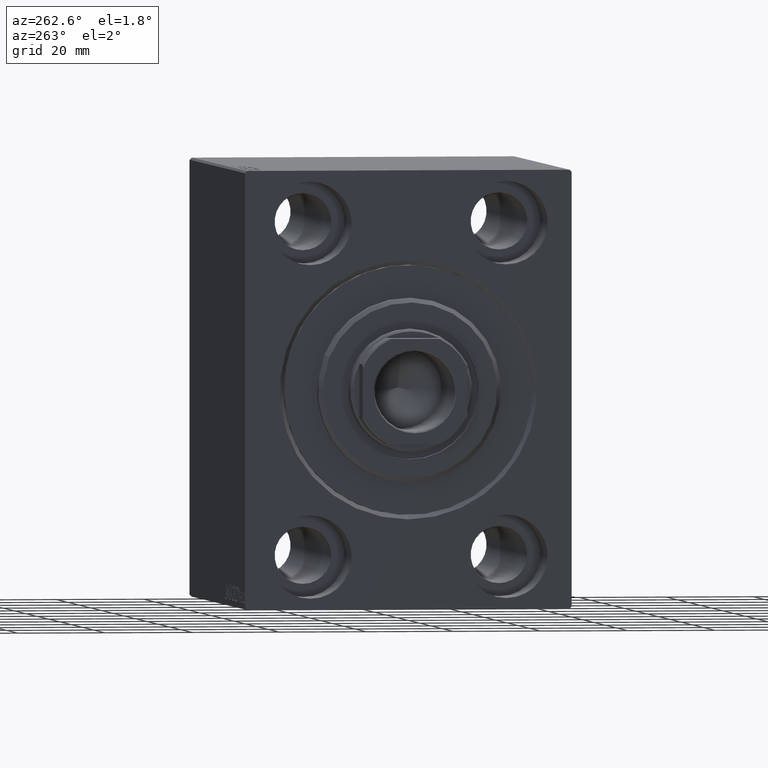
[diagram: clean part render]
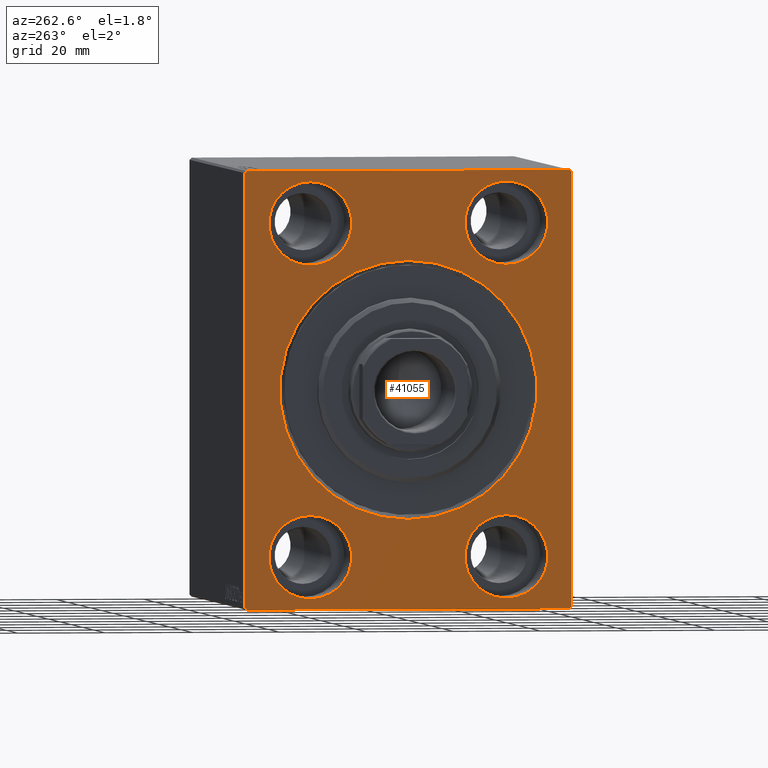
[diagram: same view with one face highlighted and labeled with its STEP entity id]
A machine part, auxiliary view. The second image highlights one B-rep face of the part: STEP entity #41055.
In plain terms, the highlighted planar face has unit normal (1, 0, 0).
Its self-contained STEP definition (entity closure, byte-faithful):
#275 = CIRCLE ( 'NONE', #25675, 29.50000000000001421 ) ;
#370 = EDGE_CURVE ( 'NONE', #13484, #19441, #38043, .T. ) ;
#395 = CIRCLE ( 'NONE', #18007, 9.500000000000001776 ) ;
#685 = ORIENTED_EDGE ( 'NONE', *, *, #15883, .F. ) ;
#1095 = DIRECTION ( 'NONE',  ( 0.000000000000000000, 0.000000000000000000, -1.000000000000000000 ) ) ;
#1385 = LINE ( 'NONE', #7582, #17860 ) ;
#1531 = CARTESIAN_POINT ( 'NONE',  ( 0.000000000000000000, -37.50000000000000711, 49.99999999999999289 ) ) ;
#1551 = DIRECTION ( 'NONE',  ( -0.000000000000000000, 0.7071067811865474617, 0.7071067811865474617 ) ) ;
#2377 = FACE_BOUND ( 'NONE', #23264, .T. ) ;
#2424 = DIRECTION ( 'NONE',  ( 0.000000000000000000, 0.000000000000000000, -1.000000000000000000 ) ) ;
#3053 = EDGE_CURVE ( 'NONE', #4246, #4127, #7900, .T. ) ;
#3313 = AXIS2_PLACEMENT_3D ( 'NONE', #31777, #25814, #38842 ) ;
#3971 = CARTESIAN_POINT ( 'NONE',  ( 0.000000000000000000, -22.50000000000000711, -37.99999999999999289 ) ) ;
#4080 = DIRECTION ( 'NONE',  ( 0.000000000000000000, 0.000000000000000000, 1.000000000000000000 ) ) ;
#4127 = VERTEX_POINT ( 'NONE', #31606 ) ;
#4246 = VERTEX_POINT ( 'NONE', #19453 ) ;
#5705 = ORIENTED_EDGE ( 'NONE', *, *, #11482, .T. ) ;
#6077 = EDGE_CURVE ( 'NONE', #13484, #32145, #17277, .T. ) ;
#6550 = CARTESIAN_POINT ( 'NONE',  ( 0.000000000000000000, 37.49999999999999289, 50.00000000000000711 ) ) ;
#7317 = DIRECTION ( 'NONE',  ( -0.000000000000000000, -0.7071067811865474617, 0.7071067811865474617 ) ) ;
#7383 = EDGE_CURVE ( 'NONE', #41171, #22258, #395, .T. ) ;
#7540 = CARTESIAN_POINT ( 'NONE',  ( 0.000000000000000000, 36.99999999999999289, 50.00000000000000711 ) ) ;
#7582 = CARTESIAN_POINT ( 'NONE',  ( 0.000000000000000000, 36.99999999999999289, 50.00000000000000711 ) ) ;
#7690 = CARTESIAN_POINT ( 'NONE',  ( 0.000000000000000000, -22.50000000000000711, -28.49999999999998934 ) ) ;
#7900 = CIRCLE ( 'NONE', #32593, 9.500000000000001776 ) ;
#8214 = CARTESIAN_POINT ( 'NONE',  ( 0.000000000000000000, 37.50000000000000711, -50.00000000000000000 ) ) ;
#8336 = VERTEX_POINT ( 'NONE', #7690 ) ;
#8416 = CARTESIAN_POINT ( 'NONE',  ( 0.000000000000000000, -36.99999999999999289, 49.99999999999999289 ) ) ;
#8779 = CARTESIAN_POINT ( 'NONE',  ( 0.000000000000000000, 0.000000000000000000, 0.000000000000000000 ) ) ;
#8965 = VECTOR ( 'NONE', #1095, 1000.000000000000000 ) ;
#9671 = CIRCLE ( 'NONE', #3313, 9.500000000000001776 ) ;
#10005 = VERTEX_POINT ( 'NONE', #7540 ) ;
#10204 = CARTESIAN_POINT ( 'NONE',  ( 0.000000000000000000, -36.99999999999999289, -50.00000000000000711 ) ) ;
#10441 = VECTOR ( 'NONE', #40331, 1000.000000000000000 ) ;
#10478 = CARTESIAN_POINT ( 'NONE',  ( 0.000000000000000000, -22.49999999999999645, 37.99999999999999289 ) ) ;
#10661 = DIRECTION ( 'NONE',  ( 0.000000000000000000, -0.7071067811865474617, -0.7071067811865474617 ) ) ;
#10990 = AXIS2_PLACEMENT_3D ( 'NONE', #3971, #17436, #26949 ) ;
#11104 = CARTESIAN_POINT ( 'NONE',  ( 0.000000000000000000, 22.50000000000000355, 37.99999999999999289 ) ) ;
#11207 = CARTESIAN_POINT ( 'NONE',  ( 0.000000000000000000, 22.49999999999999645, -37.99999999999999289 ) ) ;
#11342 = DIRECTION ( 'NONE',  ( -1.000000000000000000, 0.000000000000000000, 0.000000000000000000 ) ) ;
#11482 = EDGE_CURVE ( 'NONE', #10005, #19441, #1385, .T. ) ;
#11733 = ORIENTED_EDGE ( 'NONE', *, *, #25404, .F. ) ;
#11870 = EDGE_LOOP ( 'NONE', ( #32048, #16987, #33472, #5705, #30048, #25398, #37486, #26221 ) ) ;
#12097 = FACE_BOUND ( 'NONE', #18568, .T. ) ;
#12131 = DIRECTION ( 'NONE',  ( 0.000000000000000000, 1.000000000000000000, 9.251858538542970348E-17 ) ) ;
#12137 = VERTEX_POINT ( 'NONE', #40089 ) ;
#12666 = EDGE_CURVE ( 'NONE', #34120, #21626, #35134, .T. ) ;
#13484 = VERTEX_POINT ( 'NONE', #13500 ) ;
#13500 = CARTESIAN_POINT ( 'NONE',  ( 0.000000000000000000, 37.50000000000000711, -49.50000000000000000 ) ) ;
#13559 = DIRECTION ( 'NONE',  ( 0.000000000000000000, 0.000000000000000000, 1.000000000000000000 ) ) ;
#15147 = CARTESIAN_POINT ( 'NONE',  ( 0.000000000000000000, 22.49999999999999645, -37.99999999999999289 ) ) ;
#15217 = LINE ( 'NONE', #35763, #37866 ) ;
#15267 = AXIS2_PLACEMENT_3D ( 'NONE', #15147, #21992, #38998 ) ;
#15566 = CARTESIAN_POINT ( 'NONE',  ( 0.000000000000000000, 22.49999999999999645, -28.49999999999998934 ) ) ;
#15723 = VERTEX_POINT ( 'NONE', #18313 ) ;
#15883 = EDGE_CURVE ( 'NONE', #39209, #8336, #42721, .T. ) ;
#15902 = CARTESIAN_POINT ( 'NONE',  ( 0.000000000000000000, -37.50000000000000711, 49.49999999999997868 ) ) ;
#15971 = CIRCLE ( 'NONE', #25178, 29.50000000000001421 ) ;
#16428 = CARTESIAN_POINT ( 'NONE',  ( 0.000000000000000000, -22.49999999999999645, 28.49999999999998934 ) ) ;
#16987 = ORIENTED_EDGE ( 'NONE', *, *, #12666, .T. ) ;
#17277 = LINE ( 'NONE', #30759, #34976 ) ;
#17399 = CARTESIAN_POINT ( 'NONE',  ( 0.000000000000000000, -22.49999999999999645, 37.99999999999999289 ) ) ;
#17436 = DIRECTION ( 'NONE',  ( -1.000000000000000000, 0.000000000000000000, 0.000000000000000000 ) ) ;
#17611 = DIRECTION ( 'NONE',  ( 0.000000000000000000, 0.000000000000000000, 1.000000000000000000 ) ) ;
#17815 = CARTESIAN_POINT ( 'NONE',  ( 0.000000000000000000, 3.612708057484693970E-15, -29.50000000000001421 ) ) ;
#17860 = VECTOR ( 'NONE', #21056, 999.9999999999998863 ) ;
#18007 = AXIS2_PLACEMENT_3D ( 'NONE', #11207, #24242, #17611 ) ;
#18243 = ORIENTED_EDGE ( 'NONE', *, *, #3053, .F. ) ;
#18313 = CARTESIAN_POINT ( 'NONE',  ( 0.000000000000000000, 0.000000000000000000, 29.50000000000001421 ) ) ;
#18401 = CARTESIAN_POINT ( 'NONE',  ( 0.000000000000000000, 22.50000000000000355, 37.99999999999999289 ) ) ;
#18423 = ORIENTED_EDGE ( 'NONE', *, *, #22920, .F. ) ;
#18568 = EDGE_LOOP ( 'NONE', ( #18423, #11733 ) ) ;
#18944 = FACE_BOUND ( 'NONE', #25778, .T. ) ;
#18999 = CIRCLE ( 'NONE', #35927, 9.500000000000001776 ) ;
#19128 = CARTESIAN_POINT ( 'NONE',  ( 0.000000000000000000, 22.49999999999999645, -47.49999999999999289 ) ) ;
#19206 = CARTESIAN_POINT ( 'NONE',  ( 0.000000000000000000, 0.000000000000000000, 0.000000000000000000 ) ) ;
#19441 = VERTEX_POINT ( 'NONE', #26637 ) ;
#19453 = CARTESIAN_POINT ( 'NONE',  ( 0.000000000000000000, 22.50000000000000355, 28.49999999999998934 ) ) ;
#19664 = EDGE_CURVE ( 'NONE', #34120, #27586, #22064, .T. ) ;
#20102 = EDGE_CURVE ( 'NONE', #10005, #21626, #37460, .T. ) ;
#20188 = AXIS2_PLACEMENT_3D ( 'NONE', #8779, #42126, #22244 ) ;
#20704 = VECTOR ( 'NONE', #1551, 1000.000000000000114 ) ;
#21056 = DIRECTION ( 'NONE',  ( -0.000000000000000000, 0.7071067811865425767, -0.7071067811865525687 ) ) ;
#21122 = ORIENTED_EDGE ( 'NONE', *, *, #43345, .T. ) ;
#21354 = CARTESIAN_POINT ( 'NONE',  ( 0.000000000000000000, 37.00000000000000711, -50.00000000000000000 ) ) ;
#21626 = VERTEX_POINT ( 'NONE', #8416 ) ;
#21774 = CARTESIAN_POINT ( 'NONE',  ( 0.000000000000000000, -22.50000000000000711, -47.49999999999999289 ) ) ;
#21818 = EDGE_CURVE ( 'NONE', #8336, #39209, #9671, .T. ) ;
#21992 = DIRECTION ( 'NONE',  ( -1.000000000000000000, 0.000000000000000000, 0.000000000000000000 ) ) ;
#22064 = LINE ( 'NONE', #1531, #8965 ) ;
#22075 = VERTEX_POINT ( 'NONE', #17815 ) ;
#22139 = EDGE_CURVE ( 'NONE', #22258, #41171, #34324, .T. ) ;
#22244 = DIRECTION ( 'NONE',  ( 0.000000000000000000, 0.000000000000000000, -1.000000000000000000 ) ) ;
#22258 = VERTEX_POINT ( 'NONE', #19128 ) ;
#22920 = EDGE_CURVE ( 'NONE', #12137, #23310, #43606, .T. ) ;
#22952 = DIRECTION ( 'NONE',  ( 1.000000000000000000, 0.000000000000000000, 0.000000000000000000 ) ) ;
#23264 = EDGE_LOOP ( 'NONE', ( #38208, #18243 ) ) ;
#23310 = VERTEX_POINT ( 'NONE', #16428 ) ;
#23716 = DIRECTION ( 'NONE',  ( -1.000000000000000000, 0.000000000000000000, 0.000000000000000000 ) ) ;
#24158 = EDGE_LOOP ( 'NONE', ( #21122, #28610 ) ) ;
#24242 = DIRECTION ( 'NONE',  ( -1.000000000000000000, 0.000000000000000000, 0.000000000000000000 ) ) ;
#24819 = EDGE_CURVE ( 'NONE', #36473, #27586, #30521, .T. ) ;
#24886 = DIRECTION ( 'NONE',  ( 1.000000000000000000, 0.000000000000000000, 0.000000000000000000 ) ) ;
#25178 = AXIS2_PLACEMENT_3D ( 'NONE', #34838, #24886, #31517 ) ;
#25351 = PLANE ( 'NONE',  #20188 ) ;
#25398 = ORIENTED_EDGE ( 'NONE', *, *, #6077, .T. ) ;
#25404 = EDGE_CURVE ( 'NONE', #23310, #12137, #18999, .T. ) ;
#25570 = FACE_BOUND ( 'NONE', #43215, .T. ) ;
#25675 = AXIS2_PLACEMENT_3D ( 'NONE', #19206, #22952, #2424 ) ;
#25778 = EDGE_LOOP ( 'NONE', ( #32940, #685 ) ) ;
#25814 = DIRECTION ( 'NONE',  ( -1.000000000000000000, 0.000000000000000000, 0.000000000000000000 ) ) ;
#26004 = FACE_OUTER_BOUND ( 'NONE', #11870, .T. ) ;
#26221 = ORIENTED_EDGE ( 'NONE', *, *, #24819, .T. ) ;
#26618 = ORIENTED_EDGE ( 'NONE', *, *, #7383, .F. ) ;
#26637 = CARTESIAN_POINT ( 'NONE',  ( 0.000000000000000000, 37.49999999999999289, 49.50000000000000000 ) ) ;
#26949 = DIRECTION ( 'NONE',  ( 0.000000000000000000, 0.000000000000000000, 1.000000000000000000 ) ) ;
#27022 = DIRECTION ( 'NONE',  ( 0.000000000000000000, 0.000000000000000000, 1.000000000000000000 ) ) ;
#27586 = VERTEX_POINT ( 'NONE', #36393 ) ;
#27866 = DIRECTION ( 'NONE',  ( 0.000000000000000000, -1.387778780781445676E-16, 1.000000000000000000 ) ) ;
#28435 = FACE_BOUND ( 'NONE', #24158, .T. ) ;
#28610 = ORIENTED_EDGE ( 'NONE', *, *, #36679, .T. ) ;
#30048 = ORIENTED_EDGE ( 'NONE', *, *, #370, .F. ) ;
#30120 = VECTOR ( 'NONE', #27866, 1000.000000000000000 ) ;
#30521 = LINE ( 'NONE', #10204, #43640 ) ;
#30759 = CARTESIAN_POINT ( 'NONE',  ( 0.000000000000000000, 37.50000000000000711, -49.50000000000000000 ) ) ;
#30878 = DIRECTION ( 'NONE',  ( -1.000000000000000000, 0.000000000000000000, 0.000000000000000000 ) ) ;
#31517 = DIRECTION ( 'NONE',  ( 0.000000000000000000, 0.000000000000000000, -1.000000000000000000 ) ) ;
#31606 = CARTESIAN_POINT ( 'NONE',  ( 0.000000000000000000, 22.50000000000000355, 47.49999999999999289 ) ) ;
#31777 = CARTESIAN_POINT ( 'NONE',  ( 0.000000000000000000, -22.50000000000000711, -37.99999999999999289 ) ) ;
#32048 = ORIENTED_EDGE ( 'NONE', *, *, #19664, .F. ) ;
#32145 = VERTEX_POINT ( 'NONE', #21354 ) ;
#32593 = AXIS2_PLACEMENT_3D ( 'NONE', #18401, #11342, #4080 ) ;
#32848 = EDGE_CURVE ( 'NONE', #4127, #4246, #43188, .T. ) ;
#32940 = ORIENTED_EDGE ( 'NONE', *, *, #21818, .F. ) ;
#33472 = ORIENTED_EDGE ( 'NONE', *, *, #20102, .F. ) ;
#34120 = VERTEX_POINT ( 'NONE', #35779 ) ;
#34324 = CIRCLE ( 'NONE', #15267, 9.500000000000001776 ) ;
#34838 = CARTESIAN_POINT ( 'NONE',  ( 0.000000000000000000, 0.000000000000000000, 0.000000000000000000 ) ) ;
#34976 = VECTOR ( 'NONE', #10661, 1000.000000000000114 ) ;
#35134 = LINE ( 'NONE', #15902, #20704 ) ;
#35763 = CARTESIAN_POINT ( 'NONE',  ( 0.000000000000000000, -37.50000000000000711, -50.00000000000000711 ) ) ;
#35779 = CARTESIAN_POINT ( 'NONE',  ( 0.000000000000000000, -37.50000000000000711, 49.49999999999997868 ) ) ;
#35927 = AXIS2_PLACEMENT_3D ( 'NONE', #10478, #23716, #13559 ) ;
#36393 = CARTESIAN_POINT ( 'NONE',  ( 0.000000000000000000, -37.50000000000000711, -49.49999999999999289 ) ) ;
#36473 = VERTEX_POINT ( 'NONE', #36931 ) ;
#36679 = EDGE_CURVE ( 'NONE', #22075, #15723, #275, .T. ) ;
#36931 = CARTESIAN_POINT ( 'NONE',  ( 0.000000000000000000, -36.99999999999999289, -50.00000000000000711 ) ) ;
#37188 = DIRECTION ( 'NONE',  ( -1.000000000000000000, 0.000000000000000000, 0.000000000000000000 ) ) ;
#37460 = LINE ( 'NONE', #6550, #10441 ) ;
#37486 = ORIENTED_EDGE ( 'NONE', *, *, #42923, .F. ) ;
#37866 = VECTOR ( 'NONE', #12131, 1000.000000000000000 ) ;
#38043 = LINE ( 'NONE', #8214, #30120 ) ;
#38146 = DIRECTION ( 'NONE',  ( 0.000000000000000000, 0.000000000000000000, 1.000000000000000000 ) ) ;
#38208 = ORIENTED_EDGE ( 'NONE', *, *, #32848, .F. ) ;
#38842 = DIRECTION ( 'NONE',  ( 0.000000000000000000, 0.000000000000000000, 1.000000000000000000 ) ) ;
#38998 = DIRECTION ( 'NONE',  ( 0.000000000000000000, 0.000000000000000000, 1.000000000000000000 ) ) ;
#39209 = VERTEX_POINT ( 'NONE', #21774 ) ;
#40089 = CARTESIAN_POINT ( 'NONE',  ( 0.000000000000000000, -22.49999999999999645, 47.49999999999999289 ) ) ;
#40331 = DIRECTION ( 'NONE',  ( 0.000000000000000000, -1.000000000000000000, -1.850371707708594316E-16 ) ) ;
#40811 = AXIS2_PLACEMENT_3D ( 'NONE', #17399, #30878, #38146 ) ;
#41055 = ADVANCED_FACE ( 'NONE', ( #28435, #25570, #12097, #2377, #18944, #26004 ), #25351, .F. ) ;
#41080 = AXIS2_PLACEMENT_3D ( 'NONE', #11104, #37188, #27022 ) ;
#41171 = VERTEX_POINT ( 'NONE', #15566 ) ;
#41906 = ORIENTED_EDGE ( 'NONE', *, *, #22139, .F. ) ;
#42126 = DIRECTION ( 'NONE',  ( 1.000000000000000000, 0.000000000000000000, 0.000000000000000000 ) ) ;
#42721 = CIRCLE ( 'NONE', #10990, 9.500000000000001776 ) ;
#42923 = EDGE_CURVE ( 'NONE', #36473, #32145, #15217, .T. ) ;
#43188 = CIRCLE ( 'NONE', #41080, 9.500000000000001776 ) ;
#43215 = EDGE_LOOP ( 'NONE', ( #26618, #41906 ) ) ;
#43345 = EDGE_CURVE ( 'NONE', #15723, #22075, #15971, .T. ) ;
#43606 = CIRCLE ( 'NONE', #40811, 9.500000000000001776 ) ;
#43640 = VECTOR ( 'NONE', #7317, 1000.000000000000114 ) ;